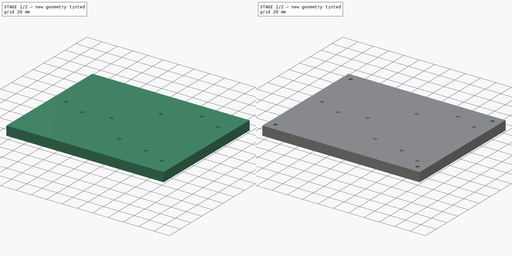
[diagram: build sequence overview — one tinted view per stage of 2, left to right]
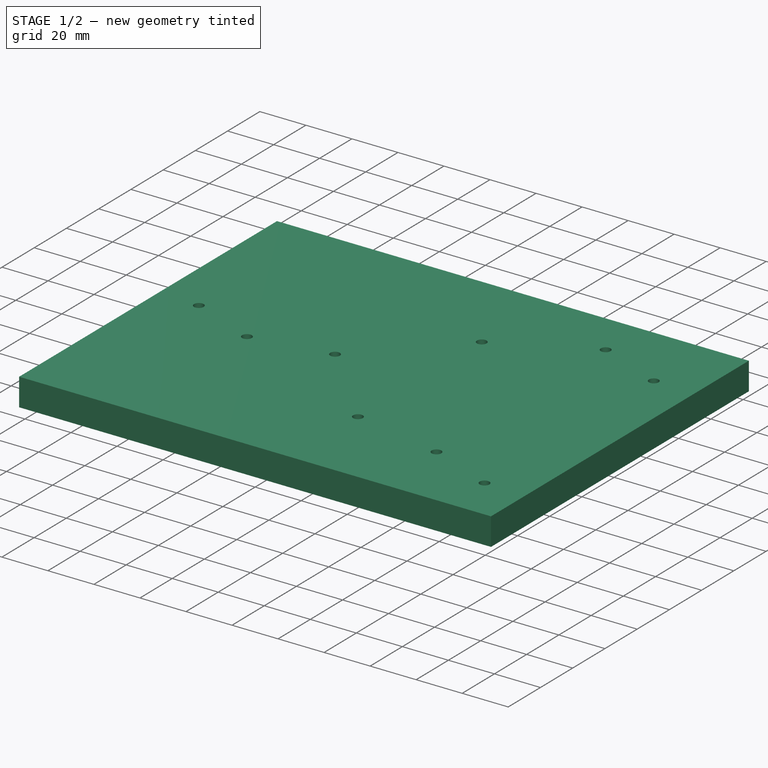
[diagram: stage 1 of 2 — iso view after this stage's code; geometry added in this stage tinted green]
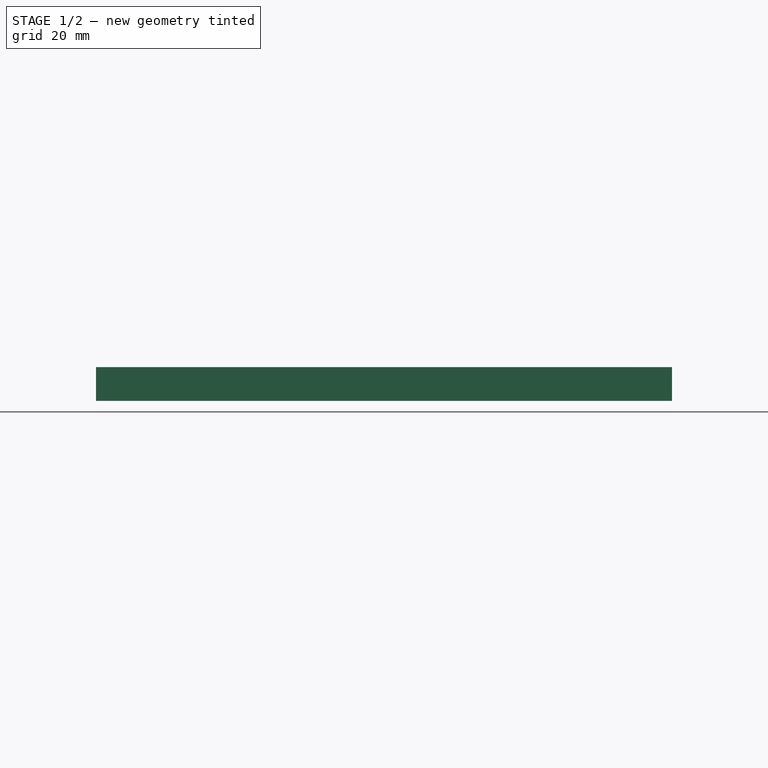
[diagram: stage 1 of 2 — front view after this stage's code; geometry added in this stage tinted green]
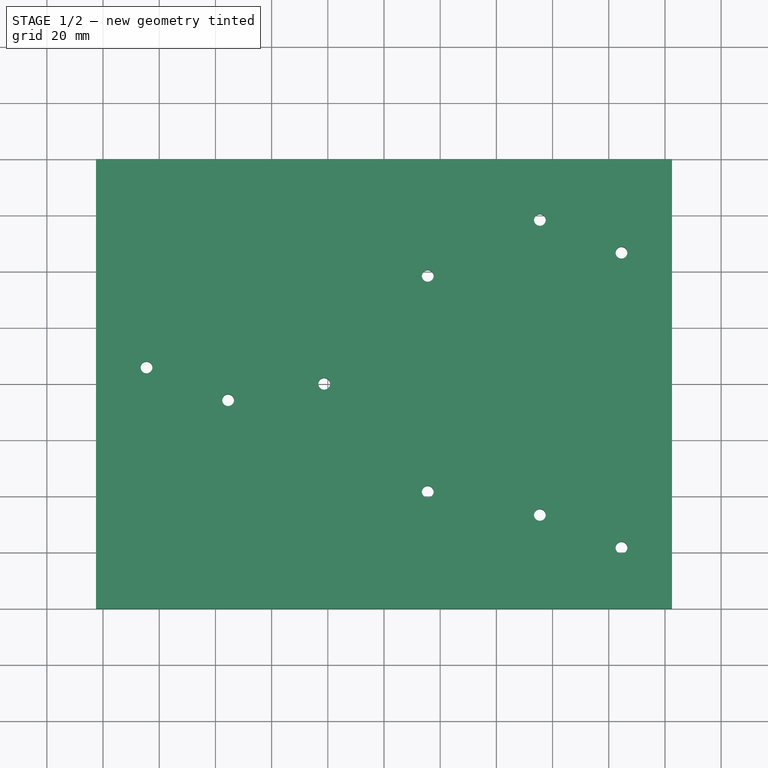
[diagram: stage 1 of 2 — top view after this stage's code; geometry added in this stage tinted green]
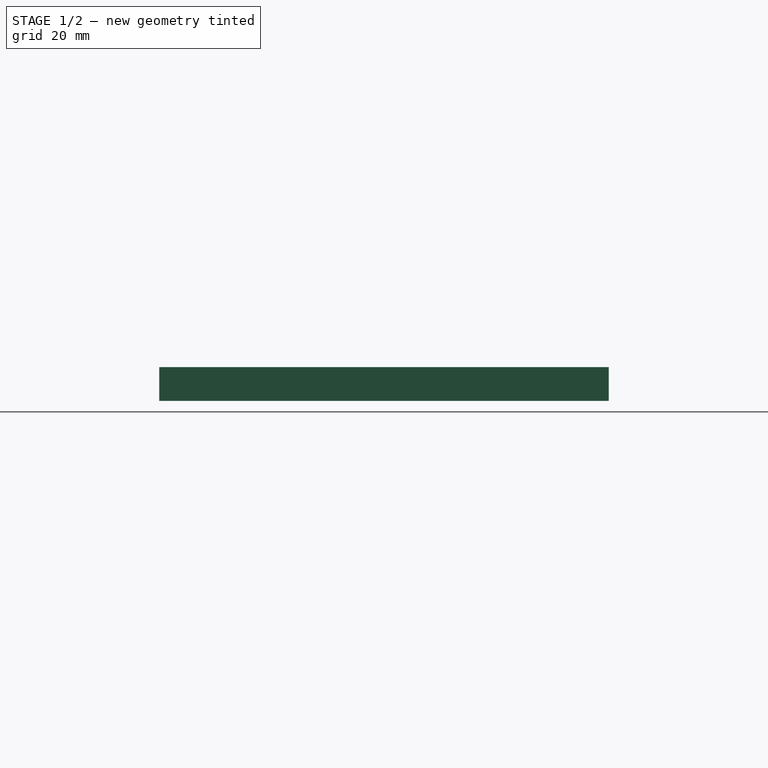
[diagram: stage 1 of 2 — right view after this stage's code; geometry added in this stage tinted green]
FCSTD DOCUMENT  (FreeCAD 0.15R4671 (Git))
Label: Arbeitsplatte v2
License: All rights reserved
LicenseURL: http://de.wikipedia.org/wiki/Alle_Rechte_vorbehalten
objects: Drawing::FeatureView×21, Sketcher::SketchObject×3, PartDesign::Pocket×2, PartDesign::Pad×1, Drawing::FeatureViewPart×1, Drawing::FeaturePage×1
note: 9 computed .brp shape members not serialized (recipe doc carries the construction recipe); baked Part::Feature solids carry a one-line shape summary decoded from their .brp

FEATURE [Sketcher::SketchObject] Sketch
  sketch-geometry (4):
    g0: LineSegment StartX=-102.5 StartY=80 StartZ=0 EndX=102.5 EndY=80 EndZ=0
    g1: LineSegment StartX=102.5 StartY=80 StartZ=0 EndX=102.5 EndY=-80 EndZ=0
    g2: LineSegment StartX=102.5 StartY=-80 StartZ=0 EndX=-102.5 EndY=-80 EndZ=0
    g3: LineSegment StartX=-102.5 StartY=-80 StartZ=0 EndX=-102.5 EndY=80 EndZ=0
  constraints (12):
    c: Coincident(g0,g1)
    c: Coincident(g1,g2)
    c: Coincident(g2,g3)
    c: Coincident(g3,g0)
    c: Horizontal(g0)
    c: Horizontal(g2)
    c: Vertical(g1)
    c: Vertical(g3)
    c: Symmetric(g1,g0,g-1)
    c: Symmetric(g0,g0,g-2)
    c: DistanceX(g0) = 205
    c: DistanceY(g1) = -160
FEATURE [PartDesign::Pad] Pad
  Length = 12
  Length2 = 100
  Sketch = -> Sketch
  Type = 0
FEATURE [Sketcher::SketchObject] Sketch001
  Placement = pos=(0,0,12) rot=(0,0,1;0rad)
  Support = -> Pad [Face6]
  sketch-geometry (20):
    g0: Circle CenterX=-84.525 CenterY=5.829 CenterZ=0 NormalX=0 NormalY=0 NormalZ=1 Radius=2.1
    g1: Circle CenterX=-55.475 CenterY=-5.83 CenterZ=0 NormalX=0 NormalY=0 NormalZ=1 Radius=2.1
    g2: Circle CenterX=-21.275 CenterY=0 CenterZ=0 NormalX=0 NormalY=0 NormalZ=1 Radius=2.1
    g3: Circle CenterX=15.575 CenterY=38.42 CenterZ=0 NormalX=0 NormalY=0 NormalZ=1 Radius=2.1
    g4: Circle CenterX=15.575 CenterY=-38.42 CenterZ=0 NormalX=0 NormalY=0 NormalZ=1 Radius=2.1
    g5: Circle CenterX=55.475 CenterY=58.3295 CenterZ=0 NormalX=0 NormalY=0 NormalZ=1 Radius=2.1
    g6: Circle CenterX=84.525 CenterY=46.6705 CenterZ=0 NormalX=0 NormalY=0 NormalZ=1 Radius=2.1
    g7: Circle CenterX=55.475 CenterY=-46.6705 CenterZ=0 NormalX=0 NormalY=0 NormalZ=1 Radius=2.1
    g8: Circle CenterX=84.525 CenterY=-58.3295 CenterZ=0 NormalX=0 NormalY=0 NormalZ=1 Radius=2.1
    g9: LineSegment [constr] StartX=-84.525 StartY=5.829 StartZ=0 EndX=-84.525 EndY=-5.83 EndZ=0
    g10: LineSegment [constr] StartX=-84.525 StartY=-5.83 StartZ=0 EndX=-55.475 EndY=-5.83 EndZ=0
    g11: LineSegment [constr] StartX=-55.475 StartY=-5.83 StartZ=0 EndX=-84.525 EndY=5.829 EndZ=0
    g12: LineSegment [constr] StartX=55.475 StartY=-46.6705 StartZ=0 EndX=84.525 EndY=-58.3295 EndZ=0
    g13: LineSegment [constr] StartX=55.475 StartY=58.3295 StartZ=0 EndX=84.525 EndY=46.6705 EndZ=0
    g14: LineSegment [constr] StartX=15.575 StartY=38.42 StartZ=0 EndX=15.575 EndY=-38.42 EndZ=0
    g15: LineSegment [constr] StartX=-84.525 StartY=5.829 StartZ=0 EndX=-84.525 EndY=58.3295 EndZ=0
    g16: LineSegment [constr] StartX=-84.525 StartY=58.3295 StartZ=0 EndX=84.525 EndY=58.3295 EndZ=0
    g17: LineSegment [constr] StartX=84.525 StartY=58.3295 StartZ=0 EndX=84.525 EndY=46.6705 EndZ=0
    g18: LineSegment [constr] StartX=55.475 StartY=-46.6705 StartZ=0 EndX=84.525 EndY=-46.6705 EndZ=0
    g19: LineSegment [constr] StartX=84.525 StartY=-46.6705 StartZ=0 EndX=84.525 EndY=46.6705 EndZ=0
  constraints (52):
    c: PointOnObject(g2,g-1)
    c: Radius(g0) = 2.1
    c: Equal(g0,g1)
    c: Equal(g0,g2)
    c: Equal(g0,g3)
    c: Equal(g0,g5)
    c: Equal(g0,g6)
    c: Equal(g0,g8)
    c: Equal(g0,g4)
    c: Equal(g0,g7)
    c: DistanceX(g0,g1) = 29.05
    c: DistanceY(g0,g1) = -11.659
    c: Vertical(g9)
    c: Coincident(g9,g10)
    c: Horizontal(g10)
    c: Coincident(g10,g11)
    c: Coincident(g11,g9)
    c: Coincident(g1,g10)
    c: Coincident(g0,g9)
    c: Coincident(g12,g7)
    c: Coincident(g12,g8)
    c: Coincident(g13,g5)
    c: Coincident(g13,g6)
    c: Equal(g13,g12)
    c: Equal(g12,g11)
    c: Parallel(g11,g12)
    c: Parallel(g12,g13)
    c: DistanceY(g1,g2) = 5.83
    c: DistanceX(g1,g2) = 34.2
    c: Coincident(g14,g3)
    c: Coincident(g14,g4)
    c: Symmetric(g4,g3,g-1)
    c: DistanceY(g14) = -76.84
    c: DistanceX(g2,g4) = 36.85
    c: Vertical(g15)
    c: Coincident(g15,g16)
    c: Horizontal(g16)
    c: Coincident(g16,g17)
    c: Coincident(g17,g6)
    c: Vertical(g17)
    c: Symmetric(g15,g16,g-2)
    c: DistanceX(g16) = 169.05
    c: Coincident(g0,g15)
    c: Horizontal(g18)
    c: Coincident(g18,g19)
    c: Vertical(g19)
    c: Coincident(g6,g19)
    c: Coincident(g7,g18)
    c: Symmetric(g18,g6,g-1)
    c: DistanceY(g6,g8) = -105
    c: PointOnObject(g8,g19)
    c: PointOnObject(g5,g16)
FEATURE [PartDesign::Pocket] Pocket  label="Bohrung Verschraubung"
  Length = 5
  Sketch = -> Sketch001
  Type = 1
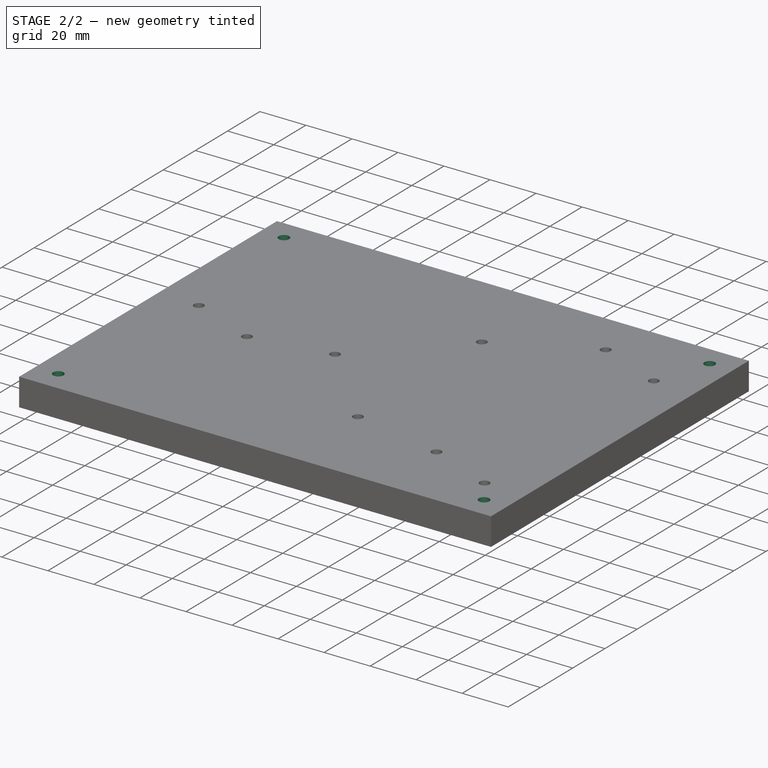
[diagram: stage 2 of 2 — iso view after this stage's code; geometry added in this stage tinted green]
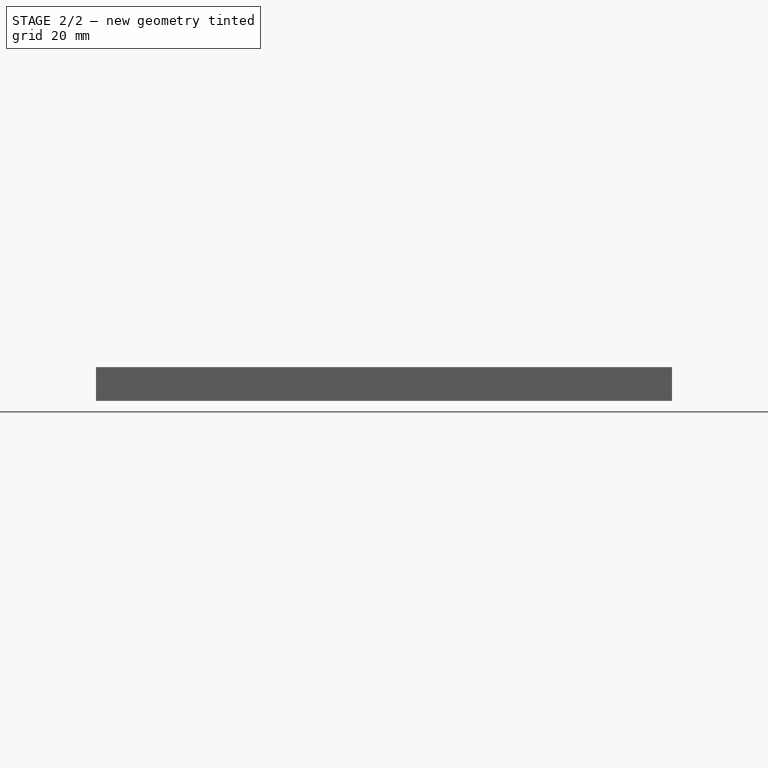
[diagram: stage 2 of 2 — front view after this stage's code; geometry added in this stage tinted green]
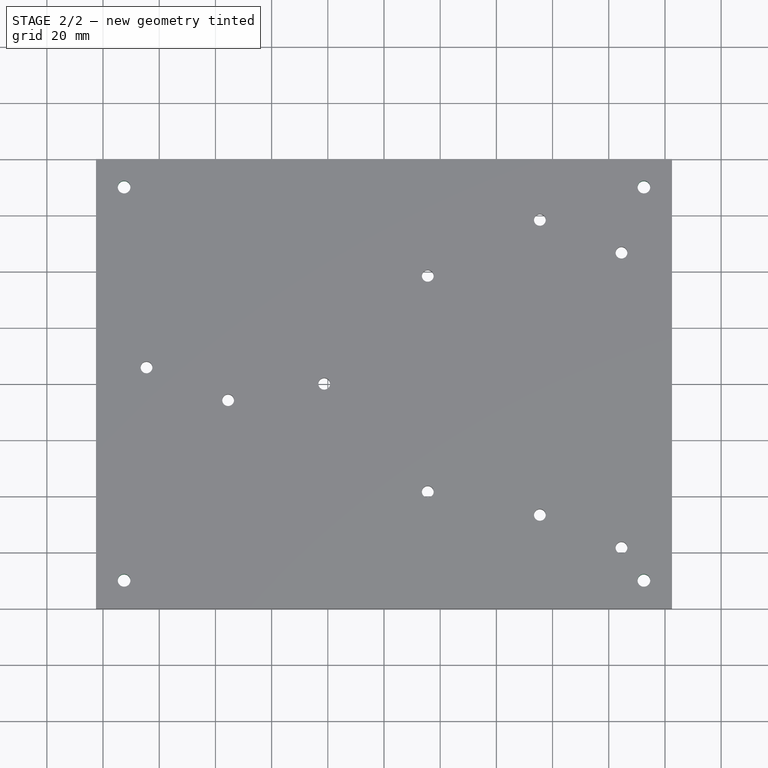
[diagram: stage 2 of 2 — top view after this stage's code; geometry added in this stage tinted green]
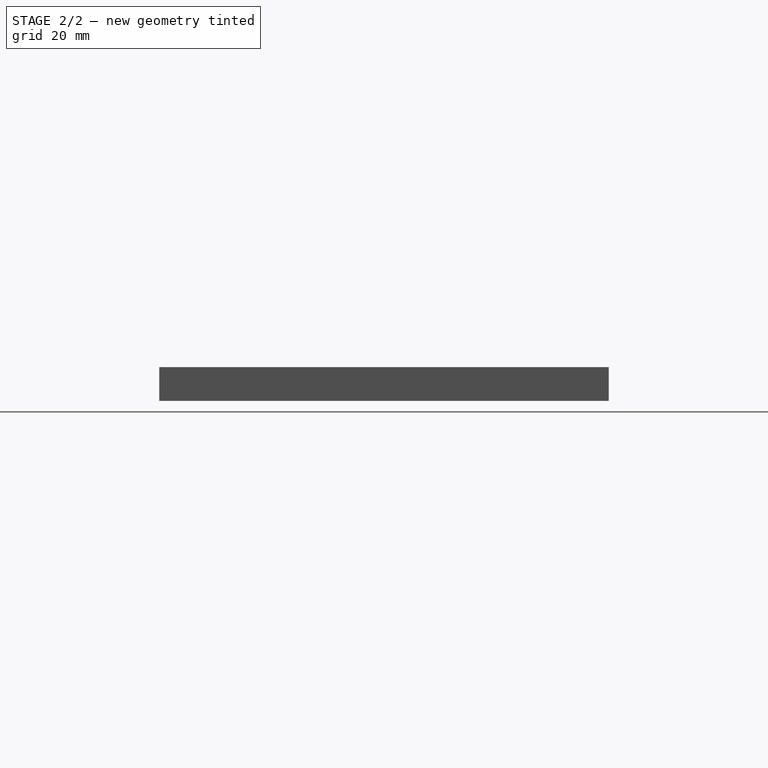
[diagram: stage 2 of 2 — right view after this stage's code; geometry added in this stage tinted green]
FEATURE [Sketcher::SketchObject] Sketch002
  ExternalGeometry = -> [Pocket]
  Placement = pos=(0,0,12) rot=(0,0,1;0rad)
  Support = -> Pocket [Face5]
  sketch-geometry (8):
    g0: LineSegment [constr] StartX=-92.5 StartY=70 StartZ=0 EndX=92.5 EndY=70 EndZ=0
    g1: LineSegment [constr] StartX=92.5 StartY=70 StartZ=0 EndX=92.5 EndY=-70 EndZ=0
    g2: LineSegment [constr] StartX=92.5 StartY=-70 StartZ=0 EndX=-92.5 EndY=-70 EndZ=0
    g3: LineSegment [constr] StartX=-92.5 StartY=-70 StartZ=0 EndX=-92.5 EndY=70 EndZ=0
    g4: Circle CenterX=-92.5 CenterY=70 CenterZ=0 NormalX=0 NormalY=0 NormalZ=1 Radius=2.25
    g5: Circle CenterX=92.5 CenterY=70 CenterZ=0 NormalX=0 NormalY=0 NormalZ=1 Radius=2.25
    g6: Circle CenterX=-92.5 CenterY=-70 CenterZ=0 NormalX=0 NormalY=0 NormalZ=1 Radius=2.25
    g7: Circle CenterX=92.5 CenterY=-70 CenterZ=0 NormalX=0 NormalY=0 NormalZ=1 Radius=2.25
  constraints (20):
    c: Coincident(g0,g1)
    c: Coincident(g1,g2)
    c: Coincident(g2,g3)
    c: Coincident(g3,g0)
    c: Horizontal(g0)
    c: Horizontal(g2)
    c: Vertical(g1)
    c: Vertical(g3)
    c: Symmetric(g0,g1,g-1)
    c: Symmetric(g0,g0,g-2)
    c: Coincident(g4,g0)
    c: Coincident(g5,g0)
    c: Coincident(g6,g2)
    c: Coincident(g7,g1)
    c: Radius(g5) = 2.25
    c: Equal(g5,g7)
    c: Equal(g5,g6)
    c: Equal(g5,g4)
    c: DistanceX(g0,g-3) = -10
    c: DistanceY(g0,g-3) = 10
FEATURE [PartDesign::Pocket] Pocket001  label="Bohrung Zentrierungen"
  Length = 5
  Sketch = -> Sketch002
  Type = 1
FEATURE [Drawing::FeatureViewPart] Ortho  label="Ortho_0_0"
  Direction = (0,0,1)
  HiddenWidth = 0.15
  LineWidth = 0.35
  Rotation = 0
  ShowHiddenLines = false
  ShowSmoothLines = false
  Source = -> Pocket001
  Tolerance = 0.05
  ViewResult = <g id="Ortho_0_0"\n   transform="rotate(0,148.5,105) translate(148.5,105) scale(1,1)"\n  >\n<g   stroke="rgb(0, 0, 0)"\n   stroke-width="0.35"\n   stroke-linecap="butt"\n   stroke-linejoin="miter"\n   fill="none"\n   transform="scale(1,-1)"\n  >\n<path id= "1" d=" M -102.5 80 L 102.5 80 " />\n<path id= "2" d=" M -102.5 -80 L -102.5 80 " />\n<path id= "3" d=" M 102.5 80 L 102.5 -80 " />\n<path id= "4" d=" M 102.5 -80 L -102.5 -80 " />\n<circle cx ="55.475" cy ="58.3295" r ="2.1" /><circle cx ="92.5" cy ="70" r ="2.25" /><circle cx ="84.525" cy ="46.6705" r ="2.1" /><circle cx ="92.5" cy ="-70" r ="2.25" /><circle cx ="84.525" cy ="-58.3295" r ="2.1" /><circle cx ="55.475" cy ="-46.6705" r ="2.1" /><circle cx ="15.575" cy ="38.42" r ="2.1" /><circle cx ="15.575" cy ="-38.42" r ="2.1" /><circle cx ="-84.525" cy ="5.829" r ="2.1" /><circle cx ="-55.475" cy ="-5.83" r ="2.1" /><circle cx ="-21.275" cy ="0" r ="2.1" /><circle cx ="-92.5" cy ="70" r ="2.25" /><circle cx ="-92.5" cy ="-70" r ="2.25" /></g>\n</g>
  Visible = true
  X = 148.5
  Y = 105
FEATURE [Drawing::FeatureView] centerLines003
  Rotation = 0
  ViewResult = <g transform="scale(1.000000,1.000000)" stroke="rgb(0,0,255)"  stroke-width="0.320000" > <path d="M 233.025000,58.329500 L 233.025000,55.329500 M 233.025000,53.329500 L 233.025000,50.849041 "/>\n<path d="M 233.025000,58.329500 L 236.025000,58.329500 M 238.025000,58.329500 L 240.120470,58.329500 "/>\n<path d="M 233.025000,58.329500 L 233.025000,61.329500 M 233.025000,63.329500 L 233.025000,65.601540 "/>\n<path d="M 233.025000,58.329500 L 230.025000,58.329500 M 228.025000,58.329500 L 224.112439,58.329500 "/> </g> 
  Visible = true
  X = 0
  Y = 0
FEATURE [Drawing::FeatureView] centerLines004
  Rotation = 0
  ViewResult = <g transform="scale(1.000000,1.000000)" stroke="rgb(0,0,255)"  stroke-width="0.320000" > <path d="M 203.975000,46.670500 L 203.975000,43.670500 M 203.975000,41.670500 L 203.975000,37.979839 "/>\n<path d="M 203.975000,46.670500 L 206.975000,46.670500 M 208.975000,46.670500 L 213.126535,46.670500 "/>\n<path d="M 203.975000,46.670500 L 203.975000,49.670500 M 203.975000,51.670500 L 203.975000,54.929519 "/>\n<path d="M 203.975000,46.670500 L 200.975000,46.670500 M 198.975000,46.670500 L 195.549089,46.670500 "/> </g> 
  Visible = true
  X = 0
  Y = 0
FEATURE [Drawing::FeatureView] centerLines005
  Rotation = 0
  ViewResult = <g transform="scale(1.000000,1.000000)" stroke="rgb(0,0,255)"  stroke-width="0.320000" > <path d="M 164.075000,66.580000 L 164.075000,63.580000 M 164.075000,61.580000 L 164.075000,58.696115 "/>\n<path d="M 164.075000,66.580000 L 167.075000,66.580000 M 169.075000,66.580000 L 173.891164,66.580000 "/>\n<path d="M 164.075000,66.580000 L 164.075000,69.580000 M 164.075000,71.580000 L 164.075000,76.273561 "/>\n<path d="M 164.075000,66.580000 L 161.075000,66.580000 M 159.075000,66.580000 L 155.058186,66.580000 "/> </g> 
  Visible = true
  X = 0
  Y = 0
FEATURE [Drawing::FeatureView] centerLines006
  Rotation = 0
  ViewResult = <g transform="scale(1.000000,1.000000)" stroke="rgb(0,0,255)"  stroke-width="0.320000" > <path d="M 127.225000,105.000000 L 127.225000,102.000000 M 127.225000,100.000000 L 127.225000,94.000000 "/>\n<path d="M 127.225000,105.000000 L 130.225000,105.000000 M 132.225000,105.000000 L 136.852974,105.000000 "/>\n<path d="M 127.225000,105.000000 L 127.225000,108.000000 M 127.225000,110.000000 L 127.225000,114.253400 "/>\n<path d="M 127.225000,105.000000 L 124.225000,105.000000 M 122.225000,105.000000 L 118.333879,105.000000 "/> </g> 
  Visible = true
  X = 0
  Y = 0
FEATURE [Drawing::FeatureView] centerLines007
  Rotation = 0
  ViewResult = <g transform="scale(1.000000,1.000000)" stroke="rgb(0,0,255)"  stroke-width="0.320000" > <path d="M 93.025000,110.830000 L 93.025000,107.830000 M 93.025000,105.830000 L 93.025000,102.325848 "/>\n<path d="M 93.025000,110.830000 L 96.025000,110.830000 M 98.025000,110.830000 L 102.011965,110.830000 "/>\n<path d="M 93.025000,110.830000 L 93.025000,113.830000 M 93.025000,115.830000 L 93.025000,118.647762 "/>\n<path d="M 93.025000,110.830000 L 90.025000,110.830000 M 88.025000,110.830000 L 85.376167,110.830000 "/> </g> 
  Visible = true
  X = 0
  Y = 0
FEATURE [Drawing::FeatureView] centerLines008
  Rotation = 0
  ViewResult = <g transform="scale(1.000000,1.000000)" stroke="rgb(0,0,255)"  stroke-width="0.320000" > <path d="M 63.975000,99.171000 L 63.975000,96.171000 M 63.975000,94.171000 L 63.975000,88.828880 "/>\n<path d="M 63.975000,99.171000 L 66.975000,99.171000 M 68.975000,99.171000 L 74.975000,99.171000 "/>\n<path d="M 63.975000,99.171000 L 63.975000,102.171000 M 63.975000,104.171000 L 63.975000,110.171000 "/>\n<path d="M 63.975000,99.171000 L 60.975000,99.171000 M 58.975000,99.171000 L 53.046222,99.171000 "/> </g> 
  Visible = true
  X = 0
  Y = 0
FEATURE [Drawing::FeatureView] centerLines010
  Rotation = 0
  ViewResult = <g transform="scale(1.000000,1.000000)" stroke="rgb(0,0,255)"  stroke-width="0.320000" > <path d="M 164.075000,143.420000 L 164.075000,140.420000 M 164.075000,138.420000 L 164.075000,134.341910 "/>\n<path d="M 164.075000,143.420000 L 167.075000,143.420000 M 169.075000,143.420000 L 172.949515,143.420000 "/>\n<path d="M 164.075000,143.420000 L 164.075000,146.420000 M 164.075000,148.420000 L 164.075000,154.420000 M 164.075000,156.420000 L 164.075000,157.883133 "/>\n<path d="M 164.075000,143.420000 L 161.075000,143.420000 M 159.075000,143.420000 L 155.372069,143.420000 "/> </g> 
  Visible = true
  X = 0
  Y = 0
FEATURE [Drawing::FeatureView] centerLines011
  Rotation = 0
  ViewResult = <g transform="scale(1.000000,1.000000)" stroke="rgb(0,0,255)"  stroke-width="0.320000" > <path d="M 203.975000,151.670500 L 203.975000,148.670500 M 203.975000,146.670500 L 203.975000,140.670500 "/>\n<path d="M 203.975000,151.670500 L 206.975000,151.670500 M 208.975000,151.670500 L 214.975000,151.670500 "/>\n<path d="M 203.975000,151.670500 L 203.975000,154.670500 M 203.975000,156.670500 L 203.975000,162.670500 "/>\n<path d="M 203.975000,151.670500 L 200.975000,151.670500 M 198.975000,151.670500 L 193.979674,151.670500 "/> </g> 
  Visible = true
  X = 0
  Y = 0
FEATURE [Drawing::FeatureView] centerLines012
  Rotation = 0
  ViewResult = <g transform="scale(1.000000,1.000000)" stroke="rgb(0,0,255)"  stroke-width="0.320000" > <path d="M 233.025000,163.329500 L 233.025000,160.329500 M 233.025000,158.329500 L 233.025000,154.116537 "/>\n<path d="M 233.025000,163.329500 L 236.025000,163.329500 M 238.025000,163.329500 L 244.025000,163.329500 M 246.025000,163.329500 L 246.084247,163.329500 "/>\n<path d="M 233.025000,163.329500 L 233.025000,166.329500 M 233.025000,168.329500 L 233.025000,174.205047 "/>\n<path d="M 233.025000,163.329500 L 230.025000,163.329500 M 228.025000,163.329500 L 225.367971,163.329500 "/> </g> 
  Visible = true
  X = 0
  Y = 0
FEATURE [Drawing::FeatureView] centerLines014
  Rotation = 0
  ViewResult = <g transform="scale(1.000000,1.000000)" stroke="rgb(0,0,255)"  stroke-width="0.320000" > <path d="M 148.500000,25.000000 L 148.500000,22.000000 M 148.500000,20.000000 L 148.500000,14.000000 M 148.500000,12.000000 L 148.500000,10.044255 "/>\n<path d="M 148.500000,25.000000 L 148.500000,28.000000 M 148.500000,30.000000 L 148.500000,36.000000 M 148.500000,38.000000 L 148.500000,41.000000 M 148.500000,43.000000 L 148.500000,49.000000 M 148.500000,51.000000 L 148.500000,54.000000 M 148.500000,56.000000 L 148.500000,62.000000 M 148.500000,64.000000 L 148.500000,67.000000 M 148.500000,69.000000 L 148.500000,75.000000 M 148.500000,77.000000 L 148.500000,80.000000 M 148.500000,82.000000 L 148.500000,88.000000 M 148.500000,90.000000 L 148.500000,93.000000 M 148.500000,95.000000 L 148.500000,101.000000 M 148.500000,103.000000 L 148.500000,106.000000 M 148.500000,108.000000 L 148.500000,114.000000 M 148.500000,116.000000 L 148.500000,119.000000 M 148.500000,121.000000 L 148.500000,127.000000 M 148.500000,129.000000 L 148.500000,132.000000 M 148.500000,134.000000 L 148.500000,140.000000 M 148.500000,142.000000 L 148.500000,145.000000 M 148.500000,147.000000 L 148.500000,153.000000 M 148.500000,155.000000 L 148.500000,158.000000 M 148.500000,160.000000 L 148.500000,166.000000 M 148.500000,168.000000 L 148.500000,171.000000 M 148.500000,173.000000 L 148.500000,179.000000 M 148.500000,181.000000 L 148.500000,184.000000 M 148.500000,186.000000 L 148.500000,192.000000 M 148.500000,194.000000 L 148.500000,197.000000 "/> </g> 
  Visible = true
  X = 0
  Y = 0
FEATURE [Drawing::FeatureView] centerLines015
  Rotation = 0
  ViewResult = <g transform="scale(1.000000,1.000000)" stroke="rgb(0,0,255)"  stroke-width="0.320000" > <path d="M 46.000000,105.000000 L 43.000000,105.000000 M 41.000000,105.000000 L 35.000000,105.000000 M 33.000000,105.000000 L 30.000000,105.000000 M 28.000000,105.000000 L 25.738403,105.000000 "/>\n<path d="M 46.000000,105.000000 L 49.000000,105.000000 M 51.000000,105.000000 L 57.000000,105.000000 M 59.000000,105.000000 L 62.000000,105.000000 M 64.000000,105.000000 L 70.000000,105.000000 M 72.000000,105.000000 L 75.000000,105.000000 M 77.000000,105.000000 L 83.000000,105.000000 M 85.000000,105.000000 L 88.000000,105.000000 M 90.000000,105.000000 L 96.000000,105.000000 M 98.000000,105.000000 L 101.000000,105.000000 M 103.000000,105.000000 L 109.000000,105.000000 M 111.000000,105.000000 L 114.000000,105.000000 M 116.000000,105.000000 L 122.000000,105.000000 M 124.000000,105.000000 L 127.000000,105.000000 M 129.000000,105.000000 L 135.000000,105.000000 M 137.000000,105.000000 L 140.000000,105.000000 M 142.000000,105.000000 L 148.000000,105.000000 M 150.000000,105.000000 L 153.000000,105.000000 M 155.000000,105.000000 L 161.000000,105.000000 M 163.000000,105.000000 L 166.000000,105.000000 M 168.000000,105.000000 L 174.000000,105.000000 M 176.000000,105.000000 L 179.000000,105.000000 M 181.000000,105.000000 L 187.000000,105.000000 M 189.000000,105.000000 L 192.000000,105.000000 M 194.000000,105.000000 L 200.000000,105.000000 M 202.000000,105.000000 L 205.000000,105.000000 M 207.000000,105.000000 L 213.000000,105.000000 M 215.000000,105.000000 L 218.000000,105.000000 M 220.000000,105.000000 L 226.000000,105.000000 M 228.000000,105.000000 L 231.000000,105.000000 M 233.000000,105.000000 L 239.000000,105.000000 M 241.000000,105.000000 L 244.000000,105.000000 M 246.000000,105.000000 L 252.000000,105.000000 M 254.000000,105.000000 L 257.000000,105.000000 M 259.000000,105.000000 L 265.000000,105.000000 M 267.000000,105.000000 L 267.742172,105.000000 "/> </g> 
  Visible = true
  X = 0
  Y = 0
FEATURE [Drawing::FeatureView] dim001
  Rotation = 0
  ViewResult = <g> \n  <line x1="251.000000" y1="187.000000" x2="251.000000" y2="206.479719" style="stroke:rgb(0,0,255);stroke-width:0.50" />\n<line x1="46.000000" y1="187.000000" x2="46.000000" y2="206.479719" style="stroke:rgb(0,0,255);stroke-width:0.50" />\n<line x1="251.000000" y1="205.479719" x2="46.000000" y2="205.479719" style="stroke:rgb(0,0,255);stroke-width:0.50" /> \n  <polygon points="46.000000,205.479719 49.000000,206.479719 50.000000,205.479719 49.000000,204.479719" style="fill:rgb(0,0,255);stroke:rgb(0,0,255);stroke-width:0" /><polygon points="251.000000,205.479719 248.000000,204.479719 247.000000,205.479719 248.000000,206.479719" style="fill:rgb(0,0,255);stroke:rgb(0,0,255);stroke-width:0" /> \n  <text x="148.500000" y="203.479719" font-family="inherit" font-size="3.6" fill="rgb(0,0,255)" text-anchor="middle" transform="rotate(0.000000 148.500000,203.479719)" >205</text> </g>
  Visible = true
  X = 0
  Y = 0
FEATURE [Drawing::FeatureView] dim002
  Rotation = 0
  ViewResult = <g> \n  <line x1="253.000000" y1="25.000000" x2="283.637766" y2="25.000000" style="stroke:rgb(0,0,255);stroke-width:0.50" />\n<line x1="253.000000" y1="185.000000" x2="283.637766" y2="185.000000" style="stroke:rgb(0,0,255);stroke-width:0.50" />\n<line x1="282.637766" y1="25.000000" x2="282.637766" y2="185.000000" style="stroke:rgb(0,0,255);stroke-width:0.50" /> \n  <polygon points="282.637766,185.000000 283.637766,182.000000 282.637766,181.000000 281.637766,182.000000" style="fill:rgb(0,0,255);stroke:rgb(0,0,255);stroke-width:0" /><polygon points="282.637766,25.000000 281.637766,28.000000 282.637766,29.000000 283.637766,28.000000" style="fill:rgb(0,0,255);stroke:rgb(0,0,255);stroke-width:0" /> \n  <text x="280.637766" y="105.000000" font-family="inherit" font-size="3.6" fill="rgb(0,0,255)" text-anchor="middle" transform="rotate(-90.000000 280.637766,105.000000)" >160</text> </g>
  Visible = true
  X = 0
  Y = 0
FEATURE [Drawing::FeatureView] dim004
  Rotation = 0
  ViewResult = <g>  <circle cx ="63.975000" cy ="99.171000" r="0.250000" stroke="none" fill="rgb(0,0,255)" /> \n<line x1="57.765383" y1="91.599393" x2="65.306682" y2="100.794768" style="stroke:rgb(0,0,255);stroke-width:0.50" />\n<polygon points="62.643318,97.547232 61.514137,94.593429 60.106780,94.454341 59.967691,95.861698" style="fill:rgb(0,0,255);stroke:rgb(0,0,255);stroke-width:0" />\n<polygon points="65.306682,100.794768 66.435863,103.748571 67.843220,103.887659 67.982309,102.480302" style="fill:rgb(0,0,255);stroke:rgb(0,0,255);stroke-width:0" />\n<line x1="57.765383" y1="91.599393" x2="54.051894" y2="91.599393" style="stroke:rgb(0,0,255);stroke-width:0.50" />\n<text x="55.908638" y="89.599393" font-family="inherit" font-size="3.6" fill="rgb(0,0,255)" text-anchor="middle" transform="rotate(0.000000 55.908638,89.599393)" >Ø4.2</text> </g>
  Visible = true
  X = 0
  Y = 0
FEATURE [Drawing::FeatureView] centerLines001
  Rotation = 0
  ViewResult = <g transform="scale(1.000000,1.000000)" stroke="rgb(0,0,255)"  stroke-width="0.320000" > <path d="M 56.000000,35.000000 L 56.000000,32.000000 M 56.000000,30.000000 L 56.000000,26.974456 "/>\n<path d="M 56.000000,35.000000 L 59.000000,35.000000 M 61.000000,35.000000 L 64.566518,35.000000 "/>\n<path d="M 56.000000,35.000000 L 56.000000,38.000000 M 56.000000,40.000000 L 56.000000,45.340043 "/>\n<path d="M 56.000000,35.000000 L 53.000000,35.000000 M 51.000000,35.000000 L 45.000000,35.000000 "/> </g> 
  Visible = true
  X = 0
  Y = 0
FEATURE [Drawing::FeatureView] centerLines002
  Rotation = 0
  ViewResult = <g transform="scale(1.000000,1.000000)" stroke="rgb(0,0,255)"  stroke-width="0.320000" > <path d="M 241.000000,35.000000 L 241.000000,32.000000 M 241.000000,30.000000 L 241.000000,26.113569 "/>\n<path d="M 241.000000,35.000000 L 244.000000,35.000000 M 246.000000,35.000000 L 252.000000,35.000000 "/>\n<path d="M 241.000000,35.000000 L 241.000000,38.000000 M 241.000000,40.000000 L 241.000000,43.905232 "/>\n<path d="M 241.000000,35.000000 L 238.000000,35.000000 M 236.000000,35.000000 L 232.152501,35.000000 "/> </g> 
  Visible = true
  X = 0
  Y = 0
FEATURE [Drawing::FeatureView] centerLines009
  Rotation = 0
  ViewResult = <g transform="scale(1.000000,1.000000)" stroke="rgb(0,0,255)"  stroke-width="0.320000" > <path d="M 241.000000,175.000000 L 241.000000,172.000000 M 241.000000,170.000000 L 241.000000,164.000000 "/>\n<path d="M 241.000000,175.000000 L 244.000000,175.000000 M 246.000000,175.000000 L 250.518088,175.000000 "/>\n<path d="M 241.000000,175.000000 L 241.000000,178.000000 M 241.000000,180.000000 L 241.000000,183.081948 "/>\n<path d="M 241.000000,175.000000 L 238.000000,175.000000 M 236.000000,175.000000 L 230.000000,175.000000 "/> </g> 
  Visible = true
  X = 0
  Y = 0
FEATURE [Drawing::FeatureView] centerLines013
  Rotation = 0
  ViewResult = <g transform="scale(1.000000,1.000000)" stroke="rgb(0,0,255)"  stroke-width="0.320000" > <path d="M 56.000000,175.000000 L 56.000000,172.000000 M 56.000000,170.000000 L 56.000000,164.000000 M 56.000000,162.000000 L 56.000000,161.846737 "/>\n<path d="M 56.000000,175.000000 L 59.000000,175.000000 M 61.000000,175.000000 L 67.000000,175.000000 M 69.000000,175.000000 L 71.453613,175.000000 "/>\n<path d="M 56.000000,175.000000 L 56.000000,178.000000 M 56.000000,180.000000 L 56.000000,184.803721 "/>\n<path d="M 56.000000,175.000000 L 53.000000,175.000000 M 51.000000,175.000000 L 45.053081,175.000000 "/> </g> 
  Visible = true
  X = 0
  Y = 0
FEATURE [Drawing::FeatureView] dim003
  Rotation = 0
  ViewResult = <g>  <circle cx ="56.000000" cy ="35.000000" r="0.250000" stroke="none" fill="rgb(0,0,255)" /> \n<line x1="68.297027" y1="35.009401" x2="53.750001" y2="34.998280" style="stroke:rgb(0,0,255);stroke-width:0.50" />\n<polygon points="58.249999,35.001720 61.249234,36.004013 62.249998,35.004778 61.250763,34.004014" style="fill:rgb(0,0,255);stroke:rgb(0,0,255);stroke-width:0" />\n<polygon points="53.750001,34.998280 50.750766,33.995987 49.750002,34.995222 50.749237,35.995986" style="fill:rgb(0,0,255);stroke:rgb(0,0,255);stroke-width:0" />\n<line x1="68.297027" y1="35.009401" x2="80.349444" y2="35.009401" style="stroke:rgb(0,0,255);stroke-width:0.50" />\n<text x="74.323236" y="33.009401" font-family="inherit" font-size="3.6" fill="rgb(0,0,255)" text-anchor="middle" transform="rotate(0.000000 74.323236,33.009401)" >Ø4.5</text> </g>
  Visible = true
  X = 0
  Y = 0
FEATURE [Drawing::FeatureView] dim005
  Rotation = 0
  ViewResult = <g> \n  <line x1="46.000000" y1="23.000000" x2="46.000000" y2="15.190555" style="stroke:rgb(0,0,255);stroke-width:0.50" />\n<line x1="56.000000" y1="33.000000" x2="56.000000" y2="15.190555" style="stroke:rgb(0,0,255);stroke-width:0.50" />\n<line x1="46.000000" y1="16.190555" x2="56.000000" y2="16.190555" style="stroke:rgb(0,0,255);stroke-width:0.50" /> \n  <polygon points="56.000000,16.190555 59.000000,17.190555 60.000000,16.190555 59.000000,15.190555" style="fill:rgb(0,0,255);stroke:rgb(0,0,255);stroke-width:0" /><polygon points="46.000000,16.190555 43.000000,15.190555 42.000000,16.190555 43.000000,17.190555" style="fill:rgb(0,0,255);stroke:rgb(0,0,255);stroke-width:0" /> \n  <text x="51.000000" y="14.190555" font-family="inherit" font-size="3.6" fill="rgb(0,0,255)" text-anchor="middle" transform="rotate(0.000000 51.000000,14.190555)" >10</text> </g>
  Visible = true
  X = 0
  Y = 0
FEATURE [Drawing::FeatureView] dim006
  Rotation = 0
  ViewResult = <g> \n  <line x1="54.000000" y1="35.000000" x2="35.565186" y2="35.000000" style="stroke:rgb(0,0,255);stroke-width:0.50" />\n<line x1="44.000000" y1="25.000000" x2="35.565186" y2="25.000000" style="stroke:rgb(0,0,255);stroke-width:0.50" />\n<line x1="36.565186" y1="35.000000" x2="36.565186" y2="25.000000" style="stroke:rgb(0,0,255);stroke-width:0.50" /> \n  <polygon points="36.565186,25.000000 37.565186,22.000000 36.565186,21.000000 35.565186,22.000000" style="fill:rgb(0,0,255);stroke:rgb(0,0,255);stroke-width:0" /><polygon points="36.565186,35.000000 35.565186,38.000000 36.565186,39.000000 37.565186,38.000000" style="fill:rgb(0,0,255);stroke:rgb(0,0,255);stroke-width:0" /> \n  <text x="34.565186" y="30.000000" font-family="inherit" font-size="3.6" fill="rgb(0,0,255)" text-anchor="middle" transform="rotate(-90.000000 34.565186,30.000000)" >10</text> </g>
  Visible = true
  X = 0
  Y = 0
FEATURE [Drawing::FeaturePage] Page
  Group = -> [Ortho,centerLines003,centerLines004,centerLines005,centerLines006,centerLines007,centerLines008,centerLines010,centerLines011,centerLines012,centerLines014,centerLines015,dim001,dim002,dim004,centerLines001,centerLines002,centerLines009,centerLines013,dim003,dim005,dim006]
  Template = C:/Program Files/FreeCAD 0.15/data/Mod/Drawing/Templates/A4_Landscape_plain.svg
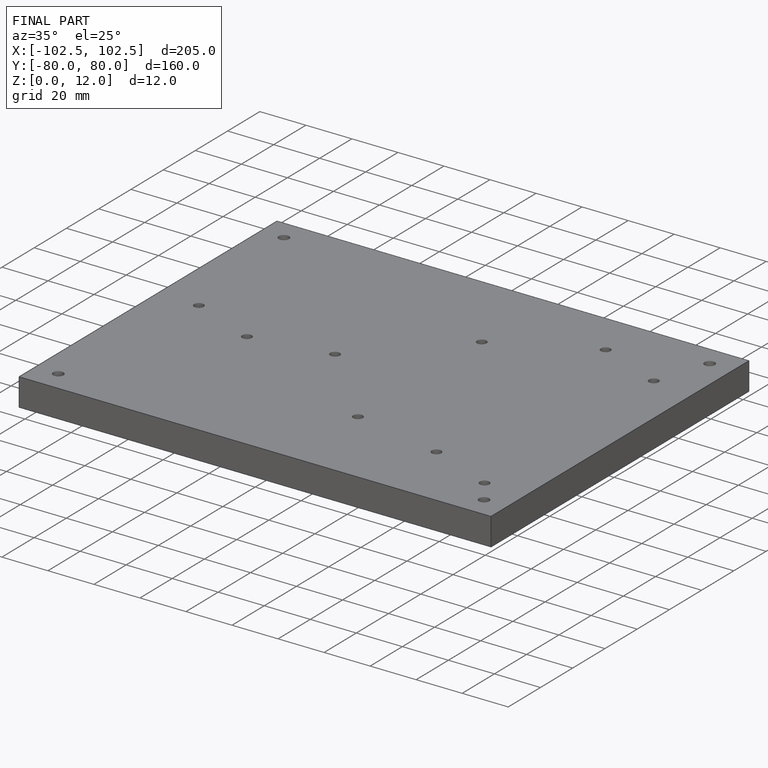
[diagram: finished part — iso view with bounding-box wireframe]
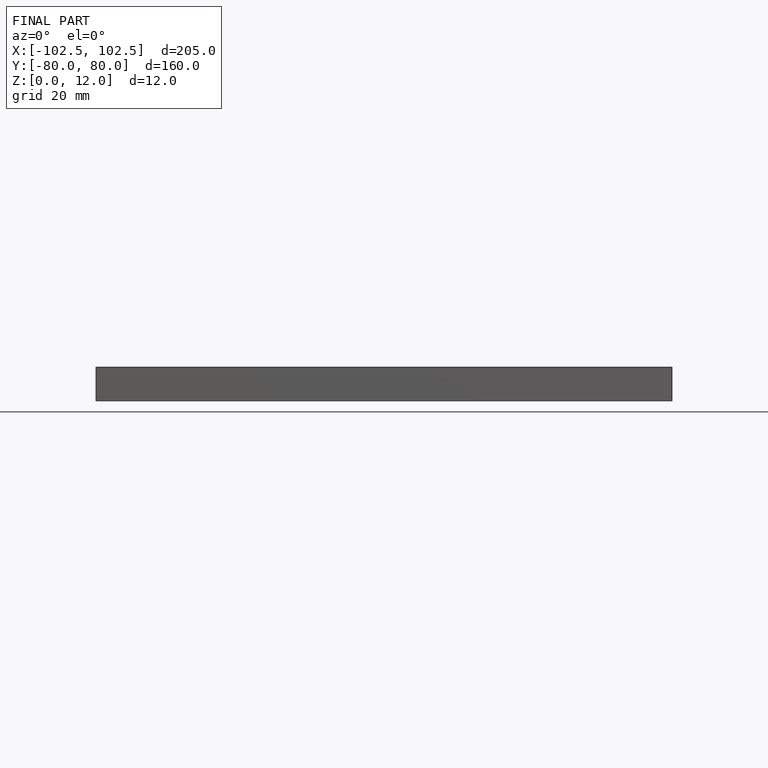
[diagram: finished part — front view with bounding-box wireframe]
